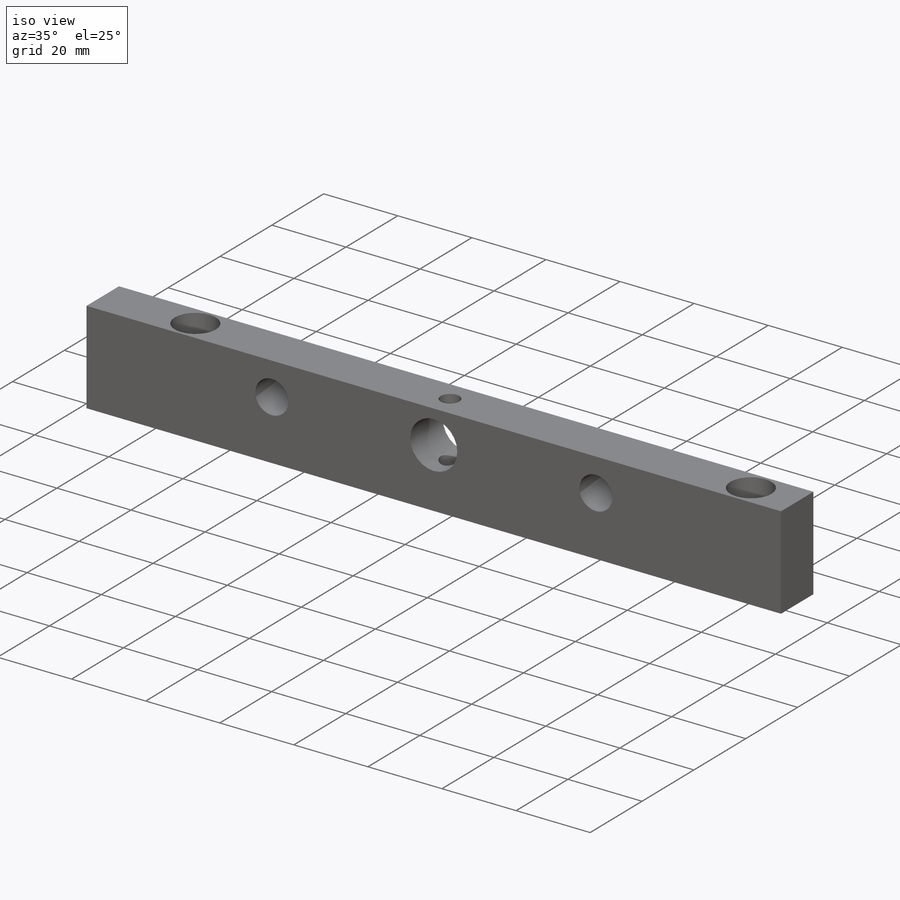
[diagram: iso view]
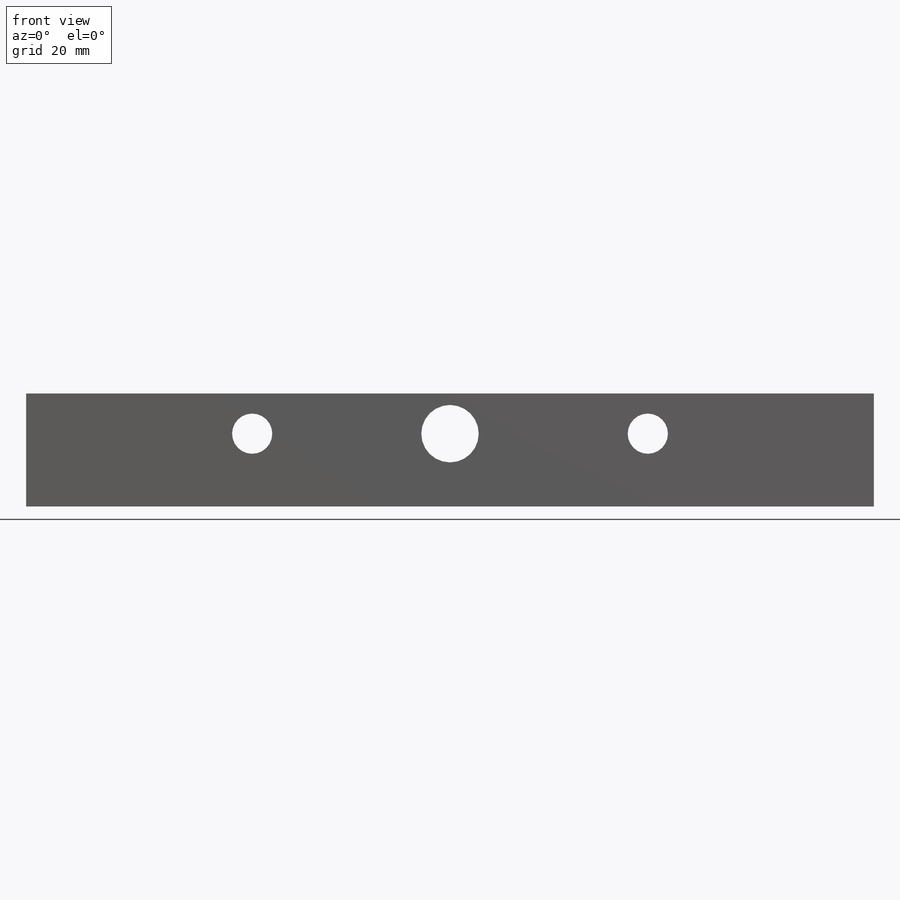
[diagram: front view]
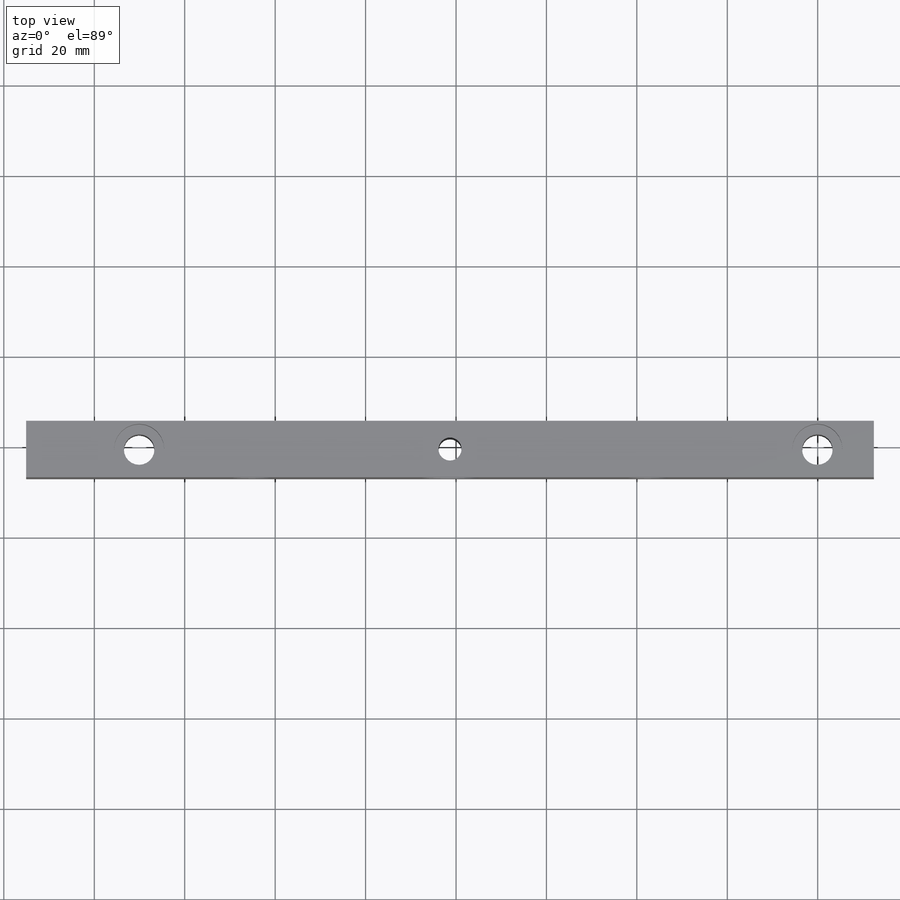
[diagram: top view]
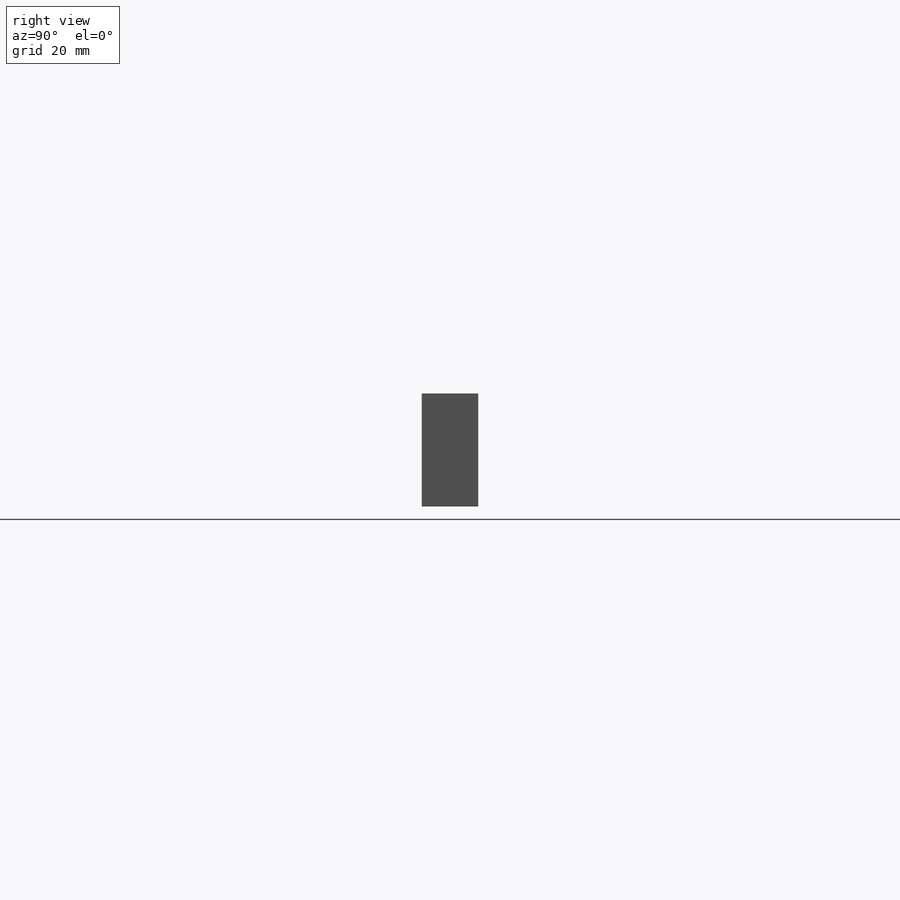
[diagram: right view]
SOLIDWORKS PART (.sldprt)
format: sldprt  version: not decoded by parser v0  size: 240,128 bytes
history: native  units: mm
features: sketch x7, hole x2, material x1, extrude x1, cut_extrude x1, thread x1 (+13 scaffold rows collapsed)
feature tree (26):
  scaffold x13  (default folders/planes/origin — collapsed)
  material  "Material <not specified>"
  sketch  "Sketch1"  dims[D1=12.5mm D2=187.5mm]
  extrude  "Boss-Extrude1"  Depth=25mm
  sketch  "Sketch2"  dims[D1=25.0mm D2=12.5mm]
  hole  "CBORE for 1/4 Socket Head Cap Screw1"  Diameter=6.7564mm Depth=25mm
  sketch  "3DSketch2"
  sketch  "Sketch3"  dims[hole-wizard template sketch: 42 standard entries collapsed; hole parameters kept: c12.Thru Hole Depth=25.0mm c12.C'Bore Dia.=11.1125mm c12.C'Bore Depth=6.35mm]
  sketch  "Sketch4"  dims[c1.D4=8.89mm c1.D5=8.89mm c1.D6=12.7mm c1.D1=8.89mm c1.D2=50.0mm c1.D3=50.0mm c2.D6=~6.17161mm]
  cut_extrude  "Cut-Extrude1"  [1 undecoded]
  hole  "1/4-20 Tapped Hole1"  Diameter=5.1054mm Depth=25mm
  sketch  "3DSketch3"
  sketch  "Sketch8"  dims[hole-wizard template sketch: 60 standard entries collapsed; hole parameters kept: c18.Thru Tap Drill Depth=25.0mm]
  thread  "Hole Thread1"  Diameter=6.35mm  [1 undecoded]
decode coverage: 9 of 12 modeling features carry decoded parameters
note: ~ marks probable driven/reference dimensions
note: 2 parameter values undecoded
note: suppression state not decoded; provenance and decode notes live in map.json
